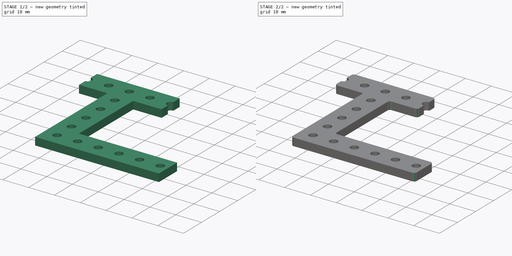
[diagram: build sequence overview — one tinted view per stage of 2, left to right]
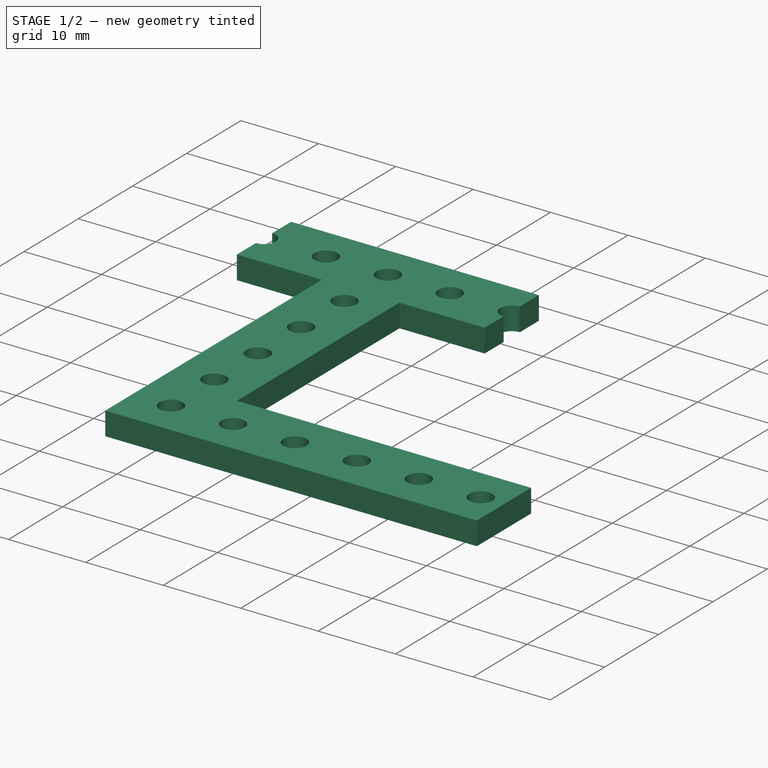
[diagram: stage 1 of 2 — iso view after this stage's code; geometry added in this stage tinted green]
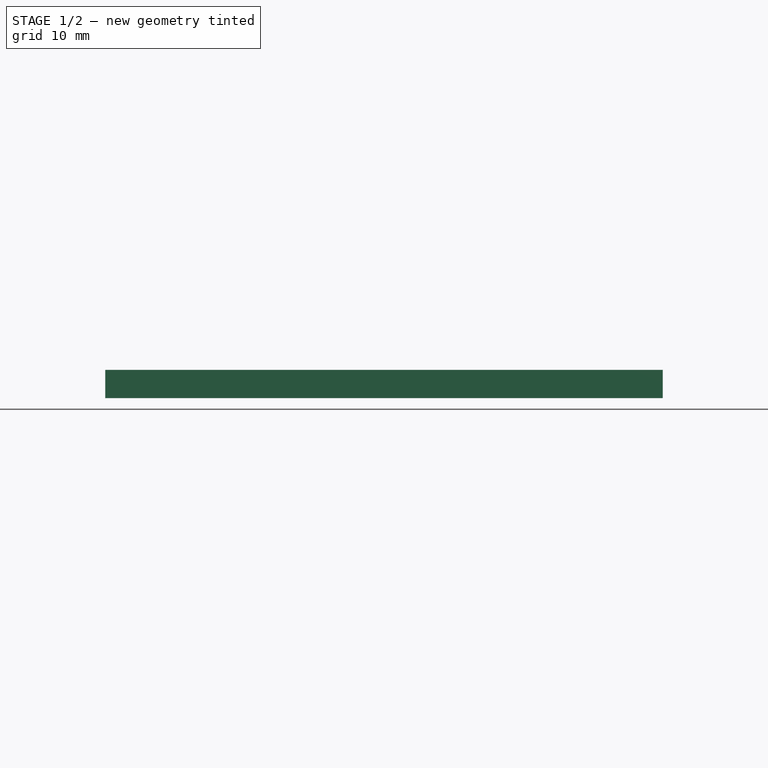
[diagram: stage 1 of 2 — front view after this stage's code; geometry added in this stage tinted green]
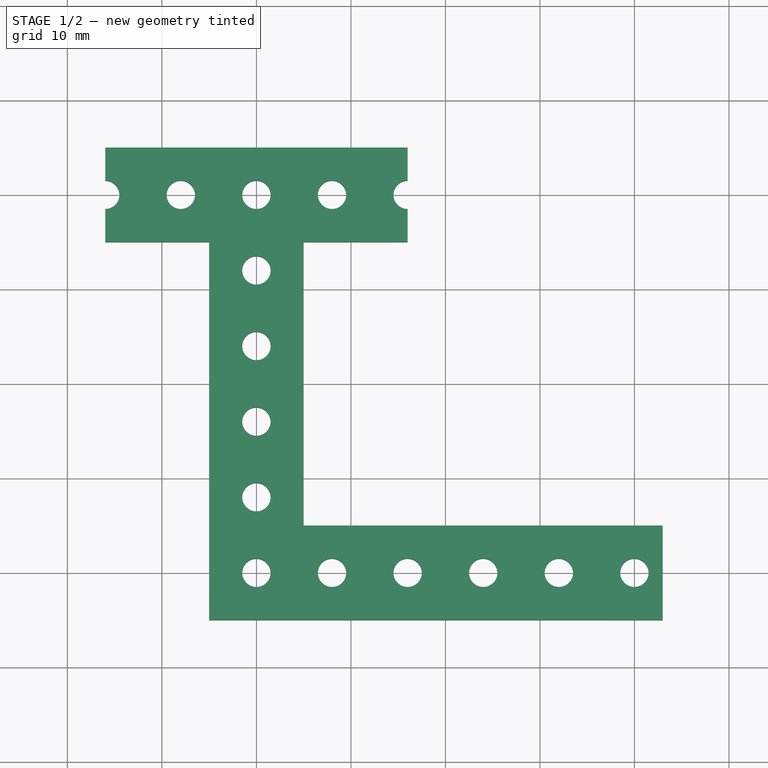
[diagram: stage 1 of 2 — top view after this stage's code; geometry added in this stage tinted green]
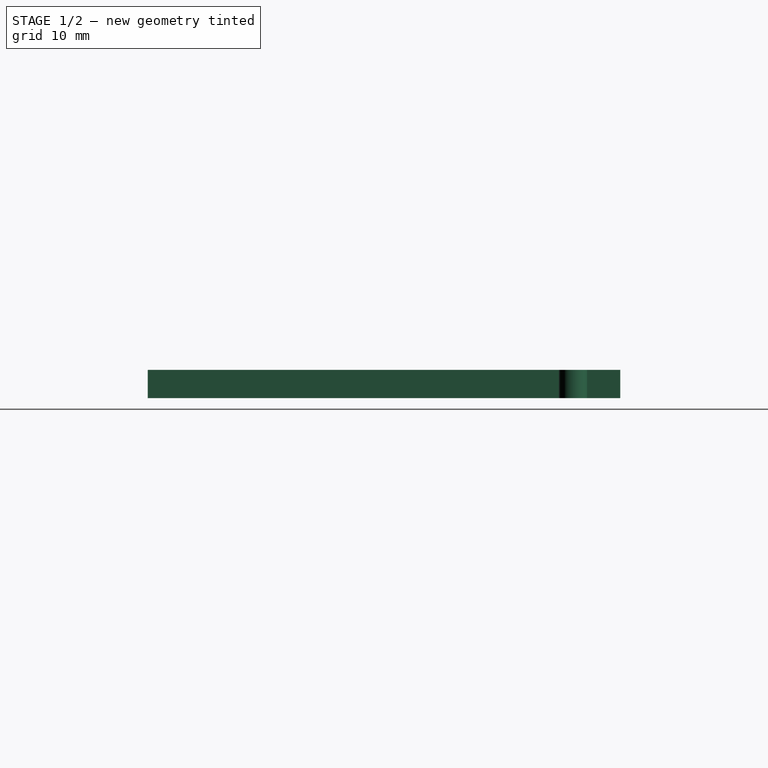
[diagram: stage 1 of 2 — right view after this stage's code; geometry added in this stage tinted green]
FCSTD DOCUMENT  (FreeCAD 0.16R6706 (Git))
Label: mount_h_shape
License: All rights reserved
LicenseURL: http://en.wikipedia.org/wiki/All_rights_reserved
objects: Sketcher::SketchObject×1, PartDesign::Pad×1, PartDesign::Fillet×1
note: 4 computed .brp shape members not serialized (recipe doc carries the construction recipe); baked Part::Feature solids carry a one-line shape summary decoded from their .brp

FEATURE [Sketcher::SketchObject] Sketch
  sketch-geometry (32):
    g0: LineSegment StartX=-16 StartY=5 StartZ=0 EndX=16 EndY=5 EndZ=0
    g1: LineSegment StartX=16 StartY=-5 StartZ=0 EndX=5 EndY=-5 EndZ=0
    g2: Circle CenterX=-8 CenterY=0 CenterZ=0 NormalX=0 NormalY=0 NormalZ=1 Radius=1.5
    g3: Circle CenterX=0 CenterY=0 CenterZ=0 NormalX=0 NormalY=0 NormalZ=1 Radius=1.5
    g4: Circle CenterX=8 CenterY=0 CenterZ=0 NormalX=0 NormalY=0 NormalZ=1 Radius=1.5
    g5: ArcOfCircle CenterX=-16 CenterY=0 CenterZ=0 NormalX=0 NormalY=0 NormalZ=1 Radius=1.5 StartAngle=4.71239 EndAngle=7.85398
    g6: ArcOfCircle CenterX=16 CenterY=0 CenterZ=0 NormalX=0 NormalY=0 NormalZ=1 Radius=1.5 StartAngle=1.5708 EndAngle=4.71239
    g7: LineSegment [constr] StartX=-5 StartY=-5 StartZ=0 EndX=5 EndY=-5 EndZ=0
    g8: LineSegment StartX=5 StartY=-5 StartZ=0 EndX=5 EndY=-35 EndZ=0
    g9: LineSegment [constr] StartX=5 StartY=-35 StartZ=0 EndX=-5 EndY=-35 EndZ=0
    g10: LineSegment StartX=-5 StartY=-35 StartZ=0 EndX=-5 EndY=-5 EndZ=0
    g11: LineSegment [constr] StartX=-5 StartY=-35 StartZ=0 EndX=43 EndY=-35 EndZ=0
    g12: LineSegment StartX=43 StartY=-35 StartZ=0 EndX=43 EndY=-45 EndZ=0
    g13: LineSegment StartX=43 StartY=-45 StartZ=0 EndX=-5 EndY=-45 EndZ=0
    g14: LineSegment StartX=-5 StartY=-45 StartZ=0 EndX=-5 EndY=-35 EndZ=0
    g15: LineSegment StartX=16 StartY=1.5 StartZ=0 EndX=16 EndY=5 EndZ=0
    g16: LineSegment StartX=16 StartY=-1.5 StartZ=0 EndX=16 EndY=-5 EndZ=0
    g17: LineSegment StartX=-5 StartY=-5 StartZ=0 EndX=-16 EndY=-5 EndZ=0
    g18: LineSegment StartX=-16 StartY=5 StartZ=0 EndX=-16 EndY=1.5 EndZ=0
    g19: LineSegment StartX=-16 StartY=-5 StartZ=0 EndX=-16 EndY=-1.5 EndZ=0
    g20: Circle CenterX=0 CenterY=-8 CenterZ=0 NormalX=0 NormalY=0 NormalZ=1 Radius=1.5
    g21: Circle CenterX=0 CenterY=-16 CenterZ=0 NormalX=0 NormalY=0 NormalZ=1 Radius=1.5
    g22: Circle CenterX=0 CenterY=-24 CenterZ=0 NormalX=0 NormalY=0 NormalZ=1 Radius=1.5
    g23: Circle CenterX=0 CenterY=-32 CenterZ=0 NormalX=0 NormalY=0 NormalZ=1 Radius=1.5
    g24: Circle CenterX=0 CenterY=-40 CenterZ=0 NormalX=0 NormalY=0 NormalZ=1 Radius=1.5
    g25: LineSegment [constr] StartX=43 StartY=-40 StartZ=0 EndX=-5 EndY=-40 EndZ=0
    g26: Circle CenterX=8 CenterY=-40 CenterZ=0 NormalX=0 NormalY=0 NormalZ=1 Radius=1.5
    g27: Circle CenterX=16 CenterY=-40 CenterZ=0 NormalX=0 NormalY=0 NormalZ=1 Radius=1.5
    g28: Circle CenterX=24 CenterY=-40 CenterZ=0 NormalX=0 NormalY=0 NormalZ=1 Radius=1.5
    g29: Circle CenterX=32 CenterY=-40 CenterZ=0 NormalX=0 NormalY=0 NormalZ=1 Radius=1.5
    g30: Circle CenterX=40 CenterY=-40 CenterZ=0 NormalX=0 NormalY=0 NormalZ=1 Radius=1.5
    g31: LineSegment StartX=5 StartY=-35 StartZ=0 EndX=43 EndY=-35 EndZ=0
  constraints (94):
    c: Horizontal(g1)
    c: Symmetric(g0,g0,g-2)
    c: Symmetric(g17,g0,g-1)
    c: DistanceX(g0,g0) = 32
    c: DistanceY(g17,g0) = 10
    c: PointOnObject(g2,g-1)
    c: Coincident(g3,g-1)
    c: PointOnObject(g4,g-1)
    c: Distance(g-1,g2) = 8
    c: Distance(g-1,g4) = 8
    c: Equal(g4,g3)
    c: Equal(g3,g2)
    c: Radius(g4) = 1.5
    c: PointOnObject(g6,g-1)
    c: Equal(g5,g6)
    c: Radius(g5) = 1.5
    c: Coincident(g7,g8)
    c: Coincident(g8,g9)
    c: Coincident(g9,g10)
    c: Coincident(g10,g7)
    c: Horizontal(g7)
    c: Horizontal(g9)
    c: Vertical(g8)
    c: Vertical(g10)
    c: PointOnObject(g7,g1)
    c: Coincident(g11,g12)
    c: Coincident(g12,g13)
    c: Coincident(g13,g14)
    c: Coincident(g14,g11)
    c: Horizontal(g11)
    c: Horizontal(g13)
    c: Vertical(g12)
    c: Vertical(g14)
    c: Coincident(g11,g9)
    c: Equal(g14,g9)
    c: Coincident(g15,g0)
    c: Vertical(g15)
    c: Coincident(g16,g6)
    c: Symmetric(g7,g7,g-2)
    c: DistanceX(g13,g13) = 48
    c: PointOnObject(g1,g8)
    c: PointOnObject(g17,g10)
    c: Tangent(g1,g17)
    c: PointOnObject(g5,g-1)
    c: Symmetric(g5,g6,g-2)
    c: Coincident(g18,g0)
    c: Vertical(g18)
    c: Coincident(g19,g17)
    c: Vertical(g19)
    c: Vertical(g16)
    c: Coincident(g16,g1)
    c: Symmetric(g1,g0,g-1)
    c: DistanceX(g5,g2) = 8
    c: Coincident(g6,g15)
    c: Coincident(g5,g18)
    c: Coincident(g19,g5)
    c: DistanceX(g9,g9) = 10
    c: PointOnObject(g20,g-2)
    c: PointOnObject(g21,g-2)
    c: PointOnObject(g22,g-2)
    c: DistanceY(g-1,g20) = -8
    c: DistanceY(g21,g20) = 8
    c: DistanceY(g22,g21) = 8
    c: PointOnObject(g23,g-2)
    c: PointOnObject(g24,g-2)
    c: DistanceY(g23,g22) = 8
    c: DistanceY(g24,g23) = 8
    c: PointOnObject(g25,g12)
    c: PointOnObject(g25,g14)
    c: Horizontal(g25)
    c: Symmetric(g11,g12,g25)
    c: PointOnObject(g24,g25)
    c: PointOnObject(g26,g25)
    c: PointOnObject(g27,g25)
    c: PointOnObject(g28,g25)
    c: PointOnObject(g29,g25)
    c: DistanceX(g24,g26) = 8
    c: DistanceX(g26,g27) = 8
    c: DistanceX(g27,g28) = 8
    c: DistanceX(g28,g29) = 8
    c: PointOnObject(g30,g25)
    c: DistanceX(g29,g30) = 8
    c: Equal(g30,g29)
    c: Equal(g29,g28)
    c: Equal(g28,g27)
    c: Equal(g27,g26)
    c: Equal(g26,g24)
    c: Equal(g24,g23)
    c: Equal(g23,g22)
    c: Equal(g22,g21)
    c: Equal(g21,g20)
    c: Equal(g20,g3)
    c: Coincident(g31,g8)
    c: Coincident(g31,g11)
FEATURE [PartDesign::Pad] Pad
  Length = 3
  Length2 = 100
  Sketch = -> Sketch
  Type = 0
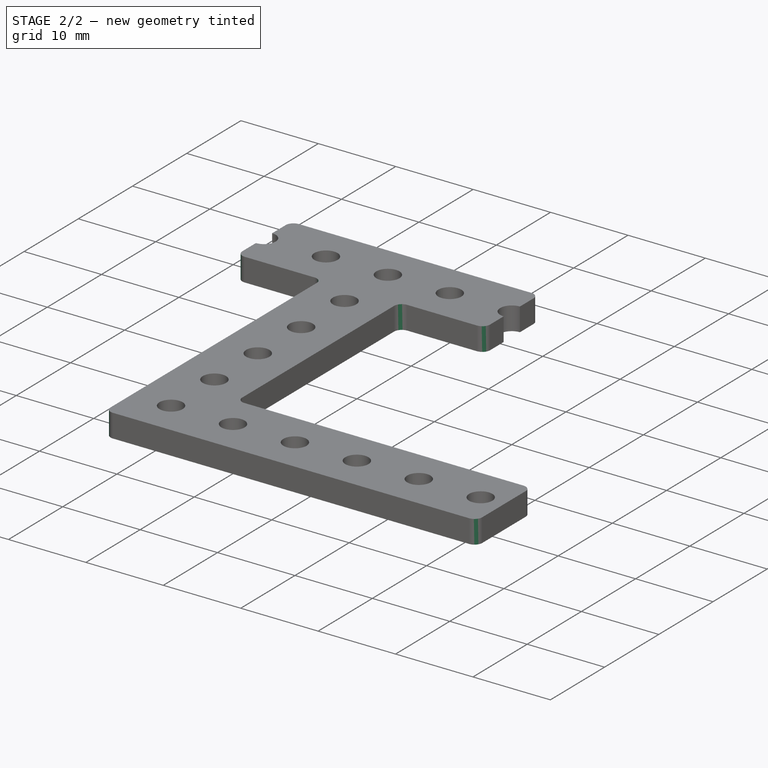
[diagram: stage 2 of 2 — iso view after this stage's code; geometry added in this stage tinted green]
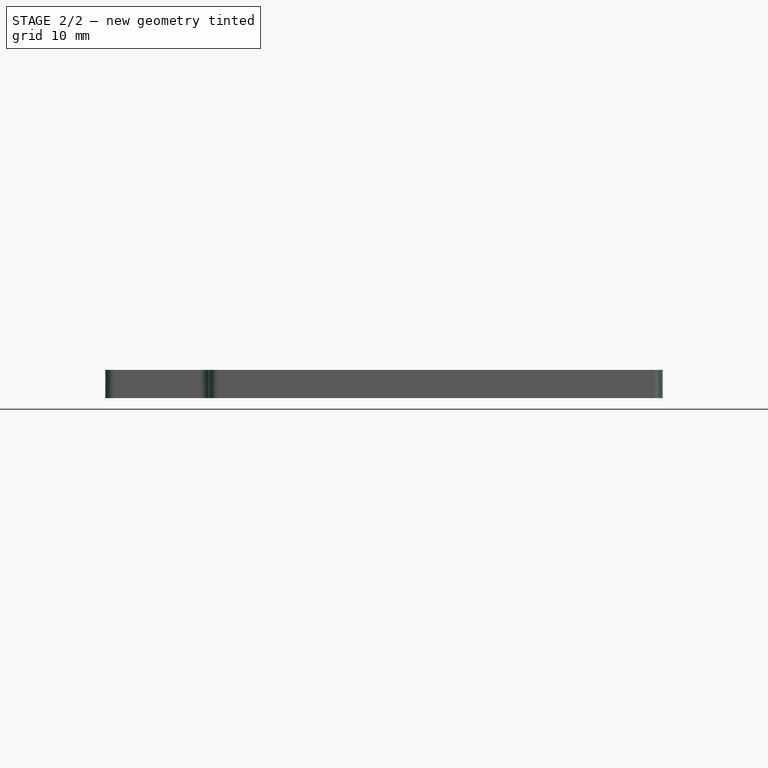
[diagram: stage 2 of 2 — front view after this stage's code; geometry added in this stage tinted green]
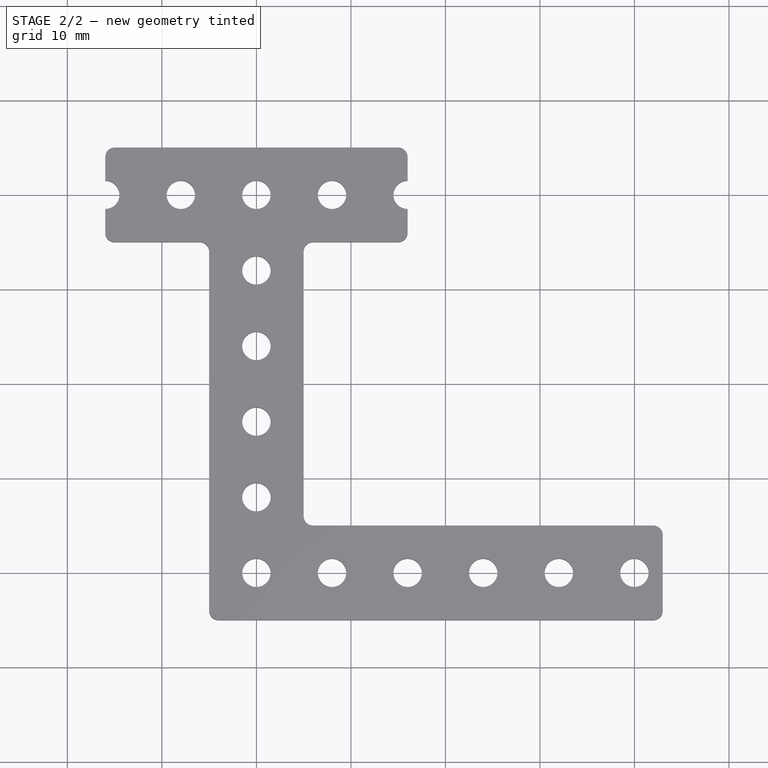
[diagram: stage 2 of 2 — top view after this stage's code; geometry added in this stage tinted green]
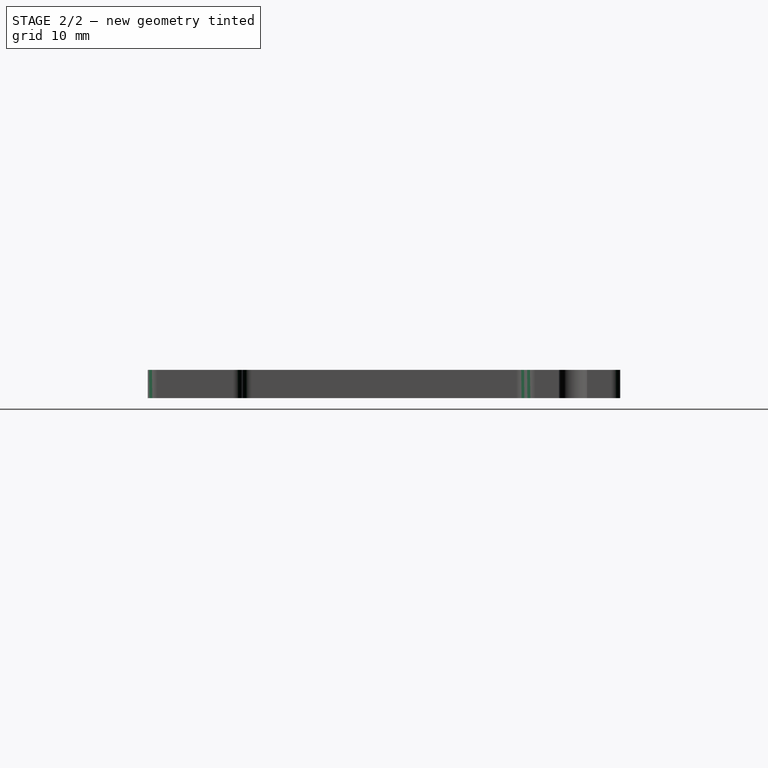
[diagram: stage 2 of 2 — right view after this stage's code; geometry added in this stage tinted green]
FEATURE [PartDesign::Fillet] Fillet
  Base = -> Pad [Edge1,Edge35,Edge2,Edge11,Edge20,Edge17,Edge23,Edge26,Edge14,Edge32]
  Radius = 1
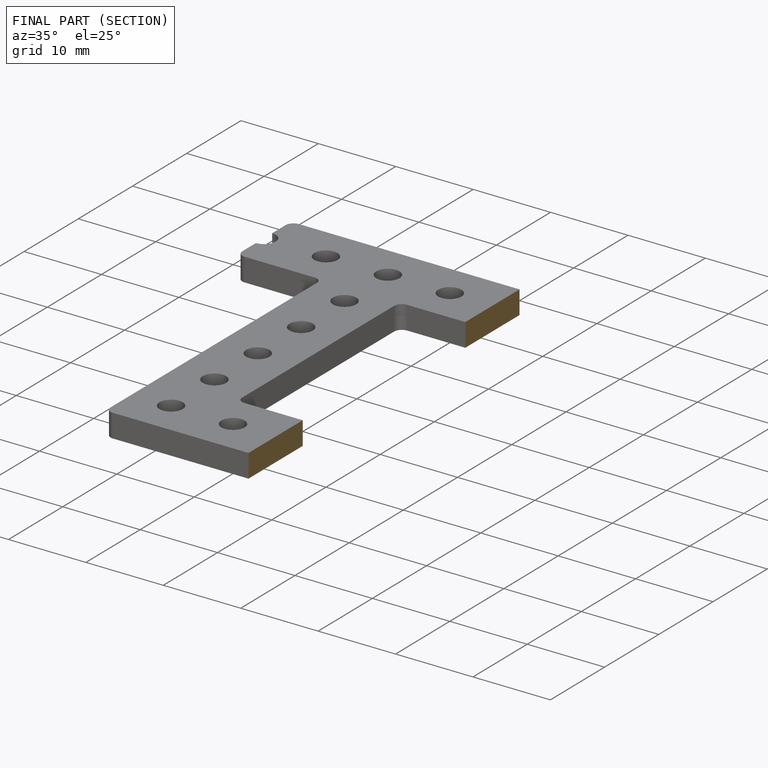
[diagram: finished part — half-section view (interior)]
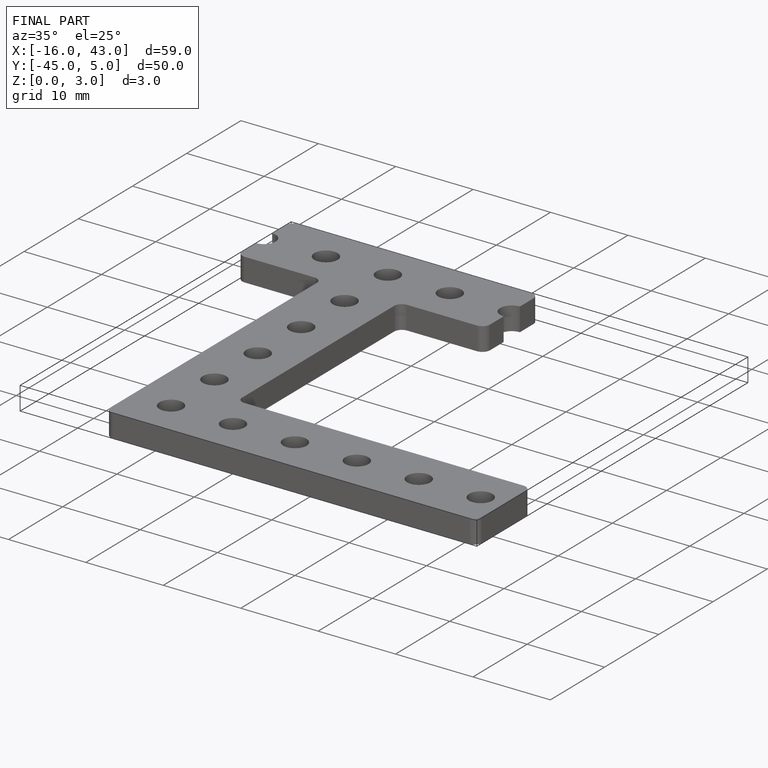
[diagram: finished part — iso view with bounding-box wireframe]
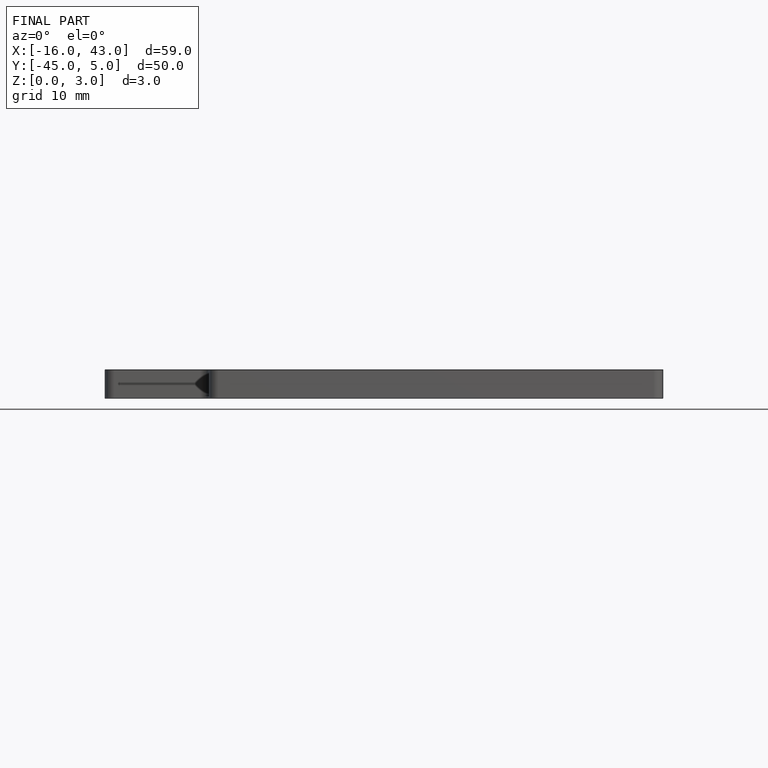
[diagram: finished part — front view with bounding-box wireframe]
